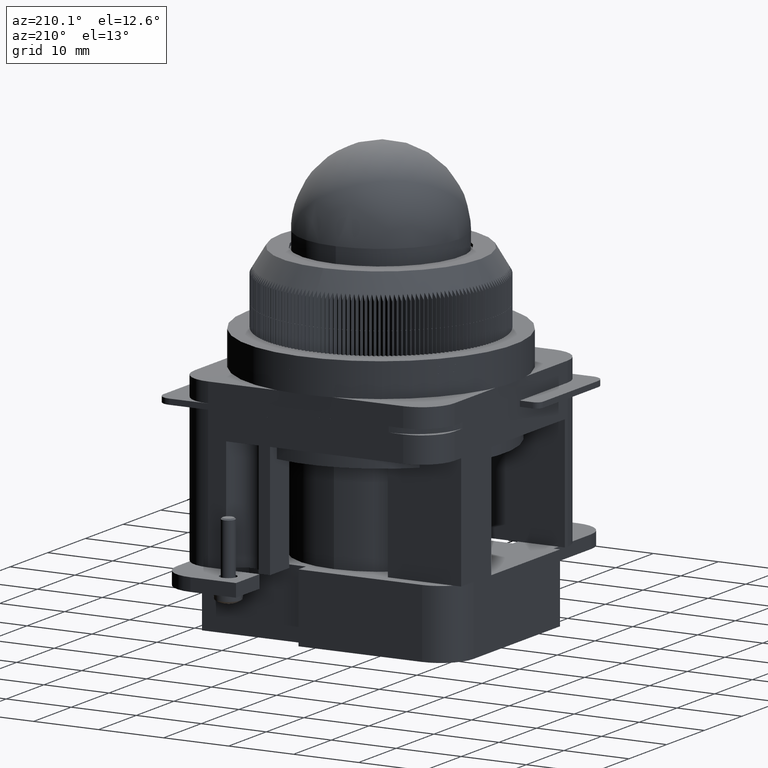
[diagram: clean part render]
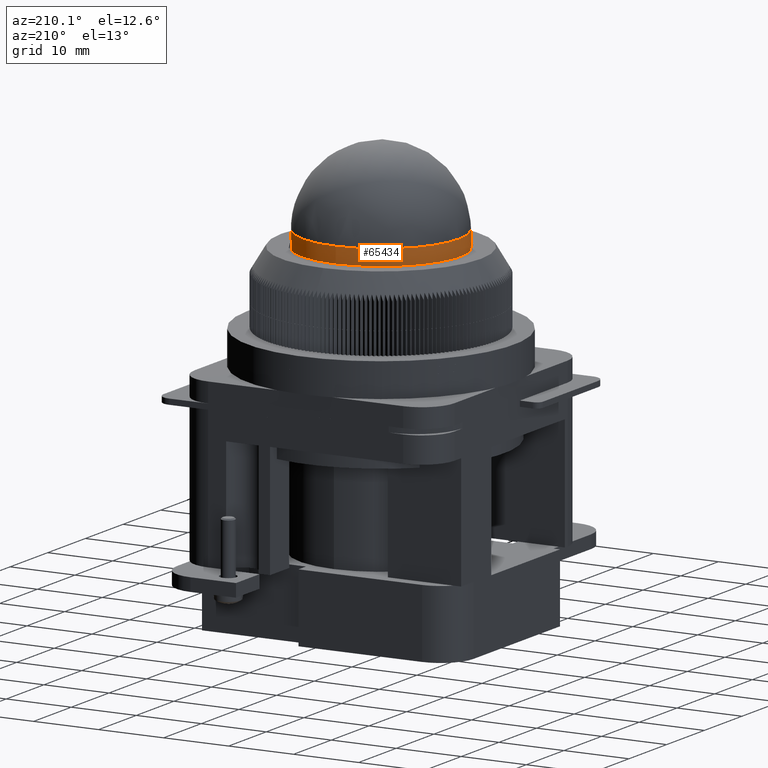
[diagram: same view with one face highlighted and labeled with its STEP entity id]
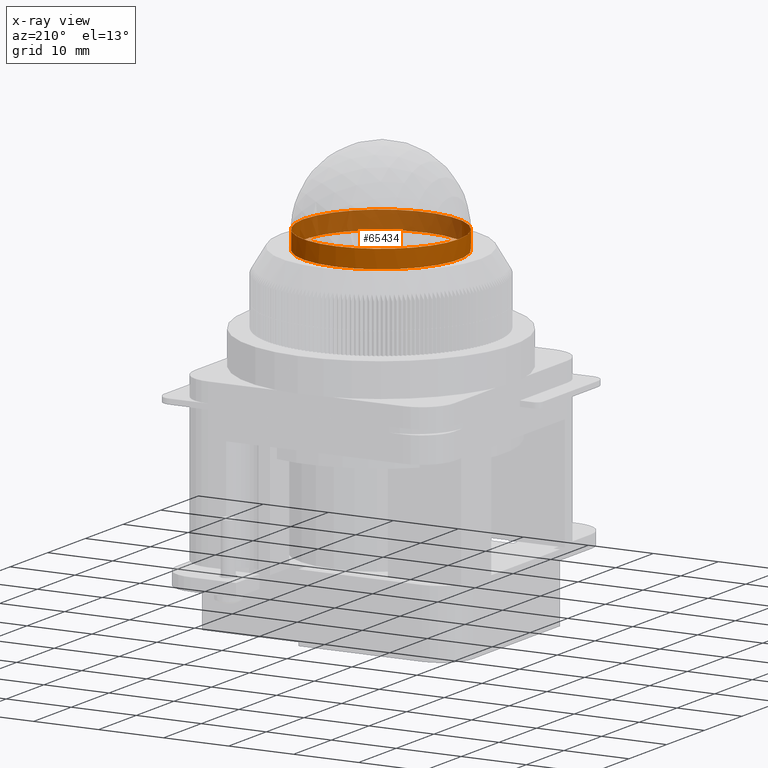
[diagram: x-ray of the same camera — body ghosted, the highlighted face saturated]
A machine part, auxiliary view. The second image highlights one B-rep face of the part: STEP entity #65434.
The next image is the same camera in x-ray: the body ghosted, the highlighted face saturated — about 46% of this face is hidden behind the body in this view.
In plain terms, the highlighted cylindrical surface (bore or boss wall) has radius 12 mm, axis along (0, 0, -1).
Its self-contained STEP definition (entity closure, byte-faithful):
#65266=CARTESIAN_POINT('',(8.917847441789075,12.057750388842505,0.0));
#65267=VERTEX_POINT('',#65266);
#65268=CARTESIAN_POINT('',(8.917847441789075,0.057750388842503,0.0));
#65269=DIRECTION('',(1.0,0.0,0.0));
#65270=DIRECTION('',(0.0,1.0,0.0));
#65271=AXIS2_PLACEMENT_3D('',#65268,#65269,#65270);
#65272=CIRCLE('',#65271,12.000000000000002);
#65273=EDGE_CURVE('',#65267,#65267,#65272,.T.);
#65411=CARTESIAN_POINT('',(6.117847441789066,12.057750388842507,0.0));
#65412=VERTEX_POINT('',#65411);
#65413=CARTESIAN_POINT('',(6.117847441789066,0.057750388842503,0.0));
#65414=DIRECTION('',(1.0,0.0,0.0));
#65415=DIRECTION('',(0.0,1.0,0.0));
#65416=AXIS2_PLACEMENT_3D('',#65413,#65414,#65415);
#65417=CIRCLE('',#65416,12.000000000000004);
#65418=EDGE_CURVE('',#65412,#65412,#65417,.T.);
#65423=CARTESIAN_POINT('',(7.517847441789071,0.057750388842503,0.0));
#65424=DIRECTION('',(1.0,0.0,0.0));
#65425=DIRECTION('',(0.0,1.0,0.0));
#65426=AXIS2_PLACEMENT_3D('',#65423,#65424,#65425);
#65427=CYLINDRICAL_SURFACE('',#65426,12.000000000000002);
#65428=ORIENTED_EDGE('',*,*,#65273,.F.);
#65429=EDGE_LOOP('',(#65428));
#65430=FACE_OUTER_BOUND('',#65429,.T.);
#65431=ORIENTED_EDGE('',*,*,#65418,.T.);
#65432=EDGE_LOOP('',(#65431));
#65433=FACE_BOUND('',#65432,.T.);
#65434=ADVANCED_FACE('',(#65430,#65433),#65427,.T.);